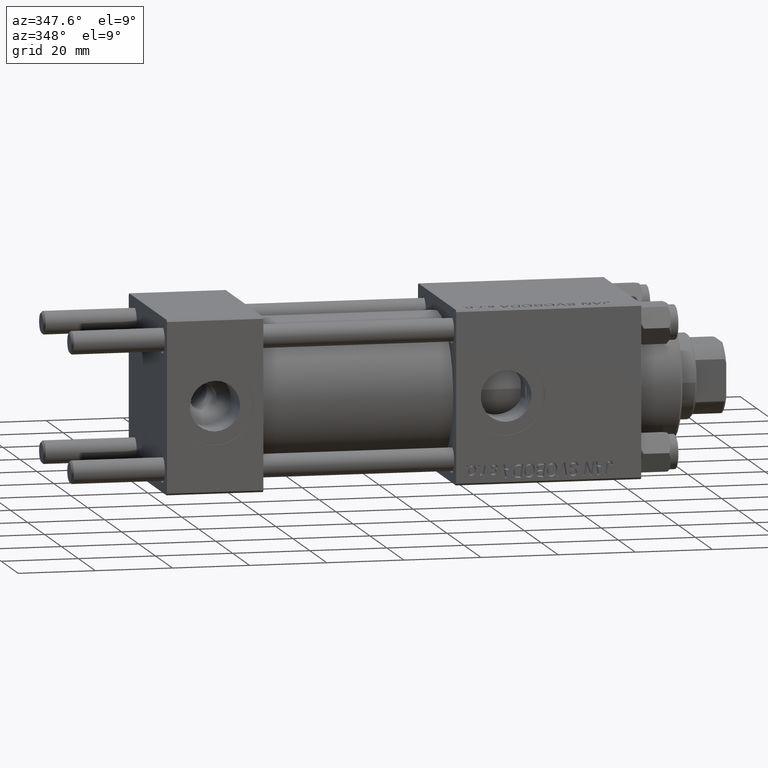
[diagram: clean part render]
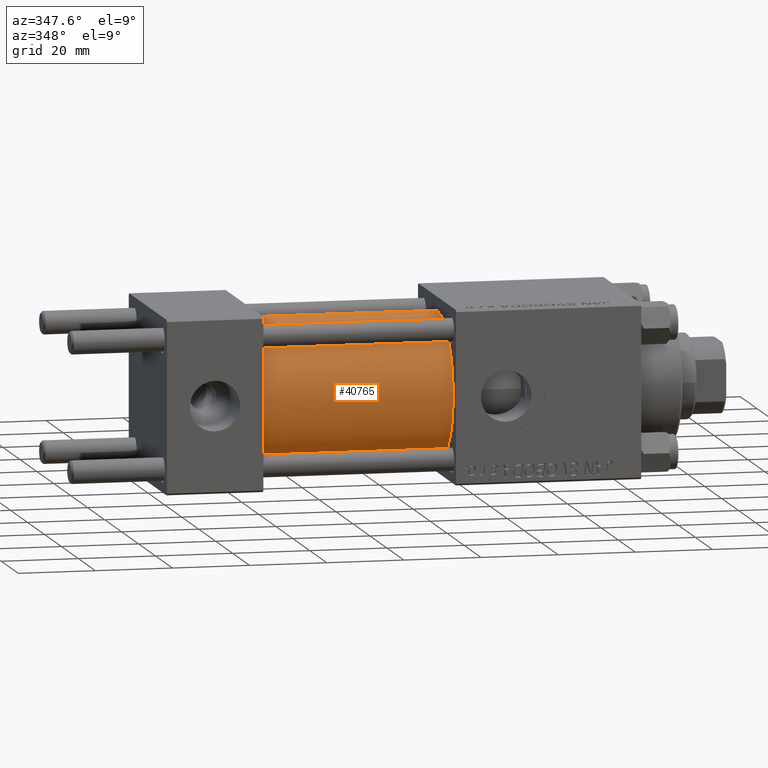
[diagram: same view with one face highlighted and labeled with its STEP entity id]
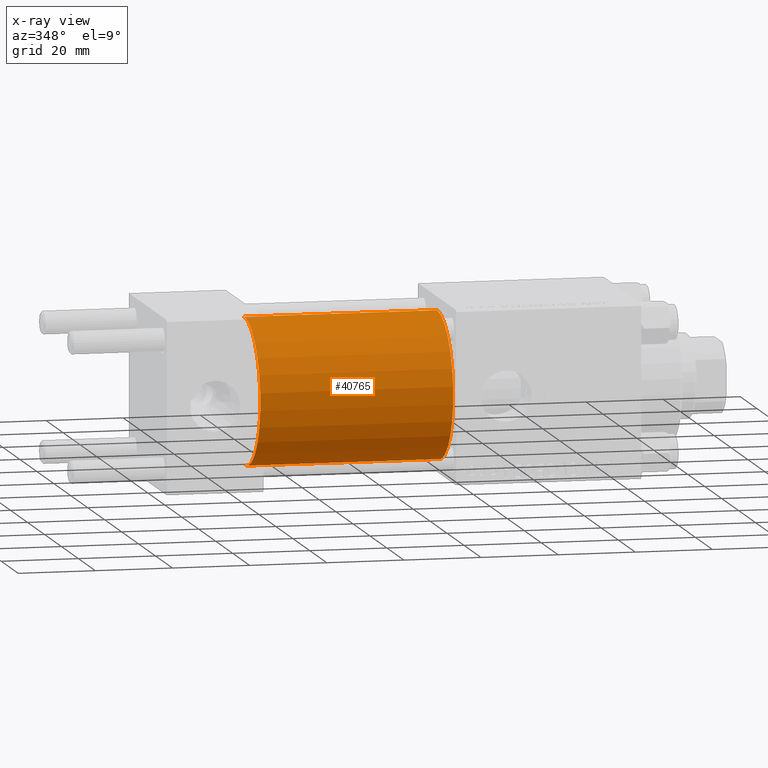
[diagram: x-ray of the same camera — body ghosted, the highlighted face saturated]
A machine part, auxiliary view. The second image highlights one B-rep face of the part: STEP entity #40765.
The next image is the same camera in x-ray: the body ghosted, the highlighted face saturated — about 0% of this face is hidden behind the body in this view.
In plain terms, the highlighted cylindrical surface (partial cylindrical patch) has radius 19 mm, axis along (-1, -0, -0).
Its self-contained STEP definition (entity closure, byte-faithful):
#361 = EDGE_LOOP ( 'NONE', ( #26613, #49103, #3720, #15342 ) ) ;
#459 = VERTEX_POINT ( 'NONE', #1893 ) ;
#1893 = CARTESIAN_POINT ( 'NONE',  ( 75.00000000000001421, 0.000000000000000000, 19.00000000000000000 ) ) ;
#3720 = ORIENTED_EDGE ( 'NONE', *, *, #9533, .T. ) ;
#3780 = CARTESIAN_POINT ( 'NONE',  ( 75.00000000000001421, 2.326828918379970970E-15, -19.00000000000000000 ) ) ;
#5620 = DIRECTION ( 'NONE',  ( 0.000000000000000000, 0.000000000000000000, 1.000000000000000000 ) ) ;
#8522 = LINE ( 'NONE', #46616, #17489 ) ;
#8615 = AXIS2_PLACEMENT_3D ( 'NONE', #20699, #8859, #13063 ) ;
#8859 = DIRECTION ( 'NONE',  ( -1.000000000000000000, -0.000000000000000000, -0.000000000000000000 ) ) ;
#9533 = EDGE_CURVE ( 'NONE', #459, #12150, #8522, .T. ) ;
#9810 = DIRECTION ( 'NONE',  ( 1.000000000000000000, 0.000000000000000000, 0.000000000000000000 ) ) ;
#11596 = VECTOR ( 'NONE', #19808, 1000.000000000000000 ) ;
#12150 = VERTEX_POINT ( 'NONE', #52045 ) ;
#12562 = CIRCLE ( 'NONE', #25994, 19.00000000000000000 ) ;
#13063 = DIRECTION ( 'NONE',  ( 0.000000000000000000, 0.000000000000000000, 1.000000000000000000 ) ) ;
#13713 = EDGE_CURVE ( 'NONE', #12150, #36119, #43708, .T. ) ;
#15342 = ORIENTED_EDGE ( 'NONE', *, *, #13713, .T. ) ;
#17489 = VECTOR ( 'NONE', #18212, 1000.000000000000000 ) ;
#17690 = DIRECTION ( 'NONE',  ( 0.000000000000000000, 0.000000000000000000, -1.000000000000000000 ) ) ;
#18212 = DIRECTION ( 'NONE',  ( -1.000000000000000000, -0.000000000000000000, -0.000000000000000000 ) ) ;
#19808 = DIRECTION ( 'NONE',  ( -1.000000000000000000, -0.000000000000000000, -0.000000000000000000 ) ) ;
#20699 = CARTESIAN_POINT ( 'NONE',  ( 75.00000000000001421, 0.000000000000000000, 0.000000000000000000 ) ) ;
#22307 = CARTESIAN_POINT ( 'NONE',  ( 75.00000000000001421, 2.326828918379970970E-15, -19.00000000000000000 ) ) ;
#25058 = CARTESIAN_POINT ( 'NONE',  ( 75.00000000000001421, 0.000000000000000000, 0.000000000000000000 ) ) ;
#25077 = DIRECTION ( 'NONE',  ( 1.000000000000000000, -0.000000000000000000, 0.000000000000000000 ) ) ;
#25148 = CYLINDRICAL_SURFACE ( 'NONE', #8615, 19.00000000000000000 ) ;
#25994 = AXIS2_PLACEMENT_3D ( 'NONE', #25058, #9810, #17690 ) ;
#26058 = AXIS2_PLACEMENT_3D ( 'NONE', #49805, #25077, #5620 ) ;
#26613 = ORIENTED_EDGE ( 'NONE', *, *, #26816, .F. ) ;
#26816 = EDGE_CURVE ( 'NONE', #39812, #36119, #39785, .T. ) ;
#35012 = EDGE_CURVE ( 'NONE', #459, #39812, #12562, .T. ) ;
#36119 = VERTEX_POINT ( 'NONE', #46870 ) ;
#39785 = LINE ( 'NONE', #3780, #11596 ) ;
#39812 = VERTEX_POINT ( 'NONE', #22307 ) ;
#40765 = ADVANCED_FACE ( 'NONE', ( #44638 ), #25148, .T. ) ;
#43708 = CIRCLE ( 'NONE', #26058, 19.00000000000000000 ) ;
#44638 = FACE_OUTER_BOUND ( 'NONE', #361, .T. ) ;
#46616 = CARTESIAN_POINT ( 'NONE',  ( 75.00000000000001421, 0.000000000000000000, 19.00000000000000000 ) ) ;
#46870 = CARTESIAN_POINT ( 'NONE',  ( 25.00000000000000000, 2.326828918379970970E-15, -19.00000000000000000 ) ) ;
#49103 = ORIENTED_EDGE ( 'NONE', *, *, #35012, .F. ) ;
#49805 = CARTESIAN_POINT ( 'NONE',  ( 25.00000000000000000, 0.000000000000000000, 0.000000000000000000 ) ) ;
#52045 = CARTESIAN_POINT ( 'NONE',  ( 25.00000000000000000, 0.000000000000000000, 19.00000000000000000 ) ) ;